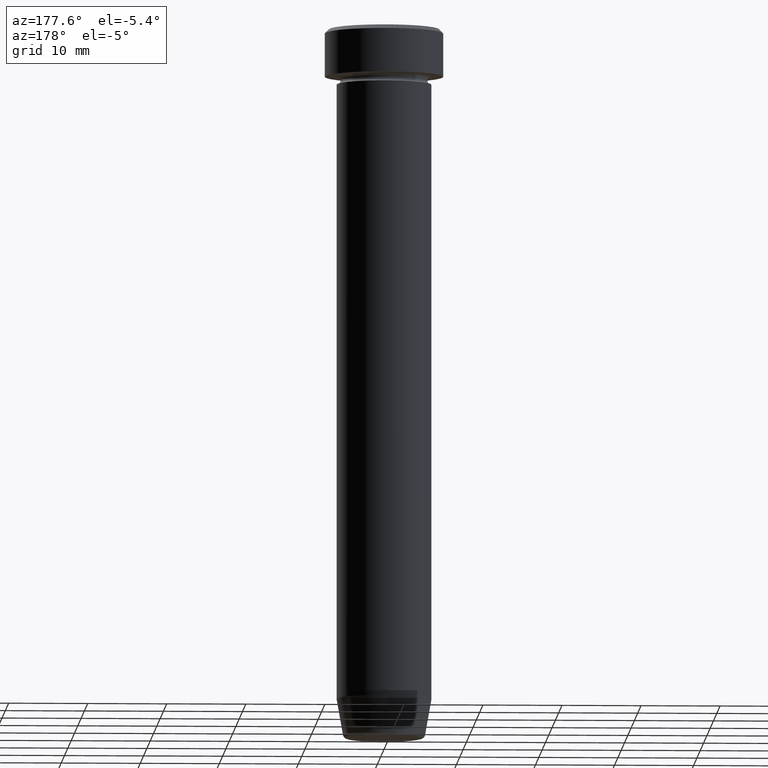
[diagram: clean part render]
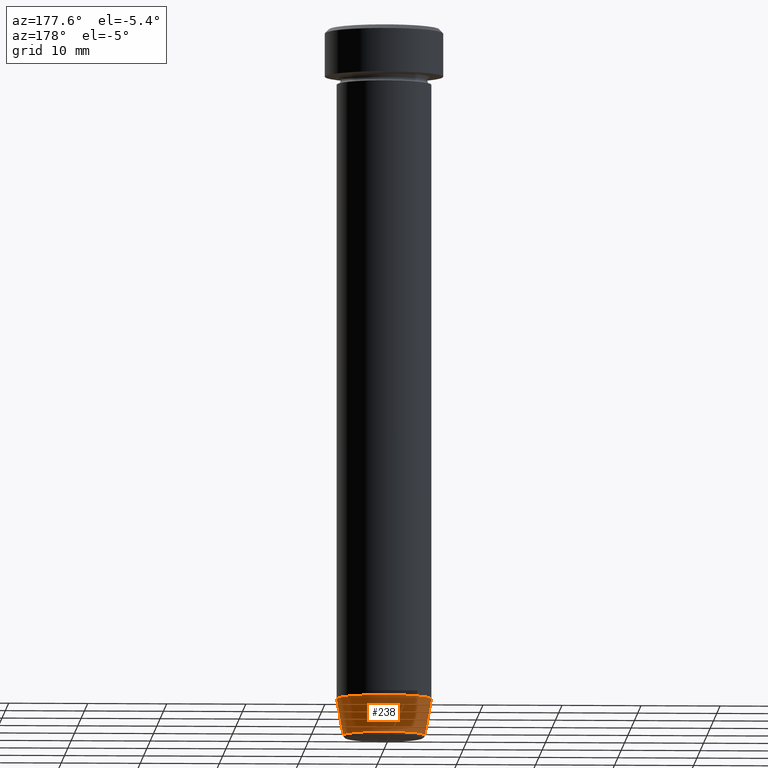
[diagram: same view with one face highlighted and labeled with its STEP entity id]
A machine part, auxiliary view. The second image highlights one B-rep face of the part: STEP entity #238.
In plain terms, the highlighted conical surface has half-angle 10 deg.
Its self-contained STEP definition (entity closure, byte-faithful):
#15 = CARTESIAN_POINT ( 'NONE',  ( 5.118365096457672792, 0.000000000000000000, -90.00000000000000000 ) ) ;
#66 = DIRECTION ( 'NONE',  ( 0.1736481776669306087, 0.000000000000000000, 0.9848077530122081313 ) ) ;
#76 = CARTESIAN_POINT ( 'NONE',  ( -5.118365096457672792, 6.268189432244423169E-16, -90.00000000000000000 ) ) ;
#84 = EDGE_CURVE ( 'NONE', #476, #542, #305, .T. ) ;
#130 = ORIENTED_EDGE ( 'NONE', *, *, #164, .F. ) ;
#149 = EDGE_CURVE ( 'NONE', #517, #408, #402, .T. ) ;
#152 = ORIENTED_EDGE ( 'NONE', *, *, #483, .T. ) ;
#155 = AXIS2_PLACEMENT_3D ( 'NONE', #172, #309, #554 ) ;
#163 = CIRCLE ( 'NONE', #155, 6.000000000000000000 ) ;
#164 = EDGE_CURVE ( 'NONE', #542, #408, #163, .T. ) ;
#172 = CARTESIAN_POINT ( 'NONE',  ( 0.000000000000000000, 0.000000000000000000, -84.99999999999998579 ) ) ;
#175 = ORIENTED_EDGE ( 'NONE', *, *, #149, .T. ) ;
#185 = ORIENTED_EDGE ( 'NONE', *, *, #84, .F. ) ;
#216 = DIRECTION ( 'NONE',  ( -0.000000000000000000, -0.000000000000000000, 1.000000000000000000 ) ) ;
#218 = CARTESIAN_POINT ( 'NONE',  ( -6.000000000000000000, 7.347880794884119736E-16, -84.99999999999998579 ) ) ;
#224 = VECTOR ( 'NONE', #66, 999.9999999999998863 ) ;
#238 = ADVANCED_FACE ( 'NONE', ( #247 ), #329, .T. ) ;
#247 = FACE_OUTER_BOUND ( 'NONE', #323, .T. ) ;
#251 = VECTOR ( 'NONE', #534, 999.9999999999998863 ) ;
#264 = CARTESIAN_POINT ( 'NONE',  ( 0.000000000000000000, 0.000000000000000000, -89.58682408883346682 ) ) ;
#305 = LINE ( 'NONE', #15, #224 ) ;
#309 = DIRECTION ( 'NONE',  ( -0.000000000000000000, -0.000000000000000000, 1.000000000000000000 ) ) ;
#323 = EDGE_LOOP ( 'NONE', ( #152, #175, #130, #185 ) ) ;
#329 = CONICAL_SURFACE ( 'NONE', #448, 5.118365096457672792, 0.1745329251994331976 ) ;
#373 = CARTESIAN_POINT ( 'NONE',  ( 0.000000000000000000, 0.000000000000000000, -90.00000000000000000 ) ) ;
#402 = LINE ( 'NONE', #76, #251 ) ;
#407 = CARTESIAN_POINT ( 'NONE',  ( -5.191219157375138060, 6.852645359818002966E-16, -89.58682408883346682 ) ) ;
#408 = VERTEX_POINT ( 'NONE', #218 ) ;
#414 = CARTESIAN_POINT ( 'NONE',  ( 5.191219157375138060, 0.000000000000000000, -89.58682408883346682 ) ) ;
#448 = AXIS2_PLACEMENT_3D ( 'NONE', #373, #466, #566 ) ;
#459 = CIRCLE ( 'NONE', #530, 5.191219157375138060 ) ;
#466 = DIRECTION ( 'NONE',  ( -0.000000000000000000, -0.000000000000000000, 1.000000000000000000 ) ) ;
#476 = VERTEX_POINT ( 'NONE', #414 ) ;
#483 = EDGE_CURVE ( 'NONE', #476, #517, #459, .T. ) ;
#517 = VERTEX_POINT ( 'NONE', #407 ) ;
#530 = AXIS2_PLACEMENT_3D ( 'NONE', #264, #216, #535 ) ;
#534 = DIRECTION ( 'NONE',  ( -0.1736481776669306087, 2.126576849575774688E-17, 0.9848077530122081313 ) ) ;
#535 = DIRECTION ( 'NONE',  ( -1.000000000000000000, 0.000000000000000000, 0.000000000000000000 ) ) ;
#542 = VERTEX_POINT ( 'NONE', #585 ) ;
#554 = DIRECTION ( 'NONE',  ( 1.000000000000000000, 0.000000000000000000, 0.000000000000000000 ) ) ;
#566 = DIRECTION ( 'NONE',  ( 1.000000000000000000, 0.000000000000000000, 0.000000000000000000 ) ) ;
#585 = CARTESIAN_POINT ( 'NONE',  ( 6.000000000000000000, 0.000000000000000000, -84.99999999999998579 ) ) ;